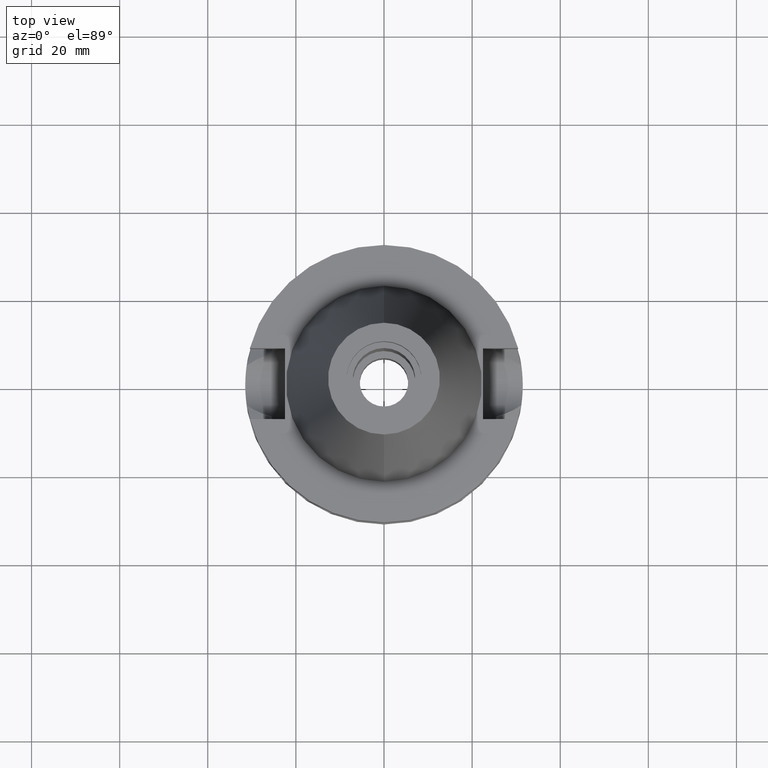
[diagram: clean part render]
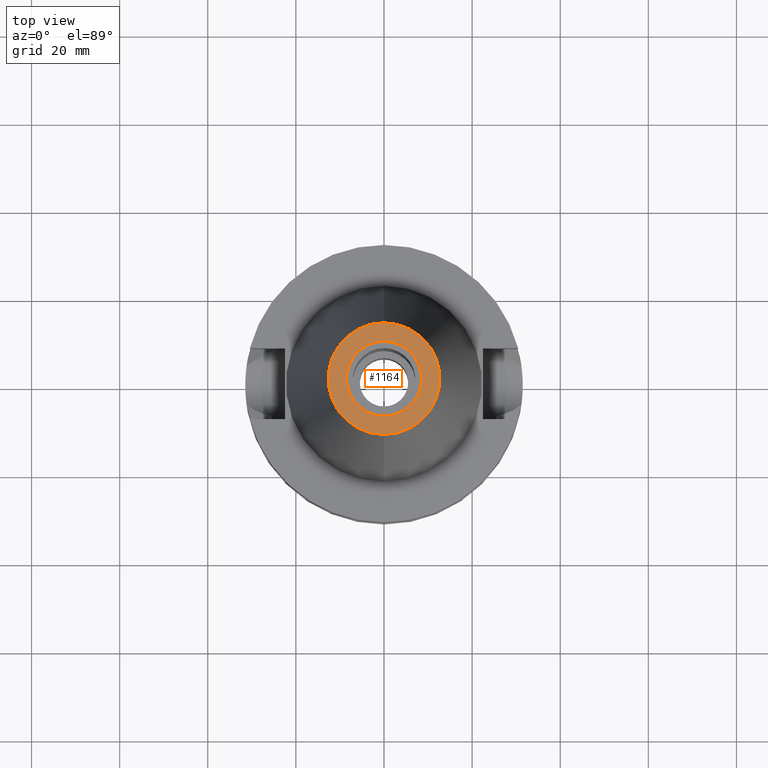
[diagram: same view with one face highlighted and labeled with its STEP entity id]
A machine part, top view. The second image highlights one B-rep face of the part: STEP entity #1164.
In plain terms, the highlighted planar face has unit normal (0, 0, -1).
Its self-contained STEP definition (entity closure, byte-faithful):
#17=CARTESIAN_POINT('',(0.E0,1.625106302469E-14,6.54E1));
#18=DIRECTION('',(0.E0,0.E0,-1.E0));
#19=DIRECTION('',(0.E0,-1.E0,0.E0));
#20=AXIS2_PLACEMENT_3D('',#17,#18,#19);
#26=CARTESIAN_POINT('',(0.E0,1.625106302469E-14,6.54E1));
#27=DIRECTION('',(0.E0,0.E0,-1.E0));
#28=DIRECTION('',(0.E0,1.E0,0.E0));
#29=AXIS2_PLACEMENT_3D('',#26,#27,#28);
#34=CARTESIAN_POINT('',(0.E0,2.111352314070E-14,6.54E1));
#35=DIRECTION('',(0.E0,0.E0,1.E0));
#36=DIRECTION('',(0.E0,-1.E0,0.E0));
#37=AXIS2_PLACEMENT_3D('',#34,#35,#36);
#42=CARTESIAN_POINT('',(0.E0,2.111352314070E-14,6.54E1));
#43=DIRECTION('',(0.E0,0.E0,1.E0));
#44=DIRECTION('',(0.E0,1.E0,0.E0));
#45=AXIS2_PLACEMENT_3D('',#42,#43,#44);
#994=CARTESIAN_POINT('',(0.E0,-1.268766899430E1,6.54E1));
#995=CARTESIAN_POINT('',(0.E0,1.268766899430E1,6.54E1));
#996=VERTEX_POINT('',#994);
#997=VERTEX_POINT('',#995);
#998=CARTESIAN_POINT('',(0.E0,-8.5E0,6.54E1));
#999=CARTESIAN_POINT('',(0.E0,8.5E0,6.54E1));
#1000=VERTEX_POINT('',#998);
#1001=VERTEX_POINT('',#999);
#1147=CARTESIAN_POINT('',(0.E0,2.025565805790E-14,6.54E1));
#1148=DIRECTION('',(0.E0,0.E0,-1.E0));
#1149=DIRECTION('',(0.E0,-1.E0,0.E0));
#1150=AXIS2_PLACEMENT_3D('',#1147,#1148,#1149);
#1151=PLANE('',#1150);
#1153=ORIENTED_EDGE('',*,*,#1152,.T.);
#1155=ORIENTED_EDGE('',*,*,#1154,.T.);
#1156=EDGE_LOOP('',(#1153,#1155));
#1157=FACE_OUTER_BOUND('',#1156,.F.);
#1159=ORIENTED_EDGE('',*,*,#1158,.T.);
#1161=ORIENTED_EDGE('',*,*,#1160,.T.);
#1162=EDGE_LOOP('',(#1159,#1161));
#1163=FACE_BOUND('',#1162,.F.);
#21=CIRCLE('',#20,1.268766899430E1);
#30=CIRCLE('',#29,1.268766899430E1);
#38=CIRCLE('',#37,8.5E0);
#46=CIRCLE('',#45,8.5E0);
#1152=EDGE_CURVE('',#996,#997,#21,.T.);
#1154=EDGE_CURVE('',#997,#996,#30,.T.);
#1158=EDGE_CURVE('',#1000,#1001,#38,.T.);
#1160=EDGE_CURVE('',#1001,#1000,#46,.T.);
#1164=ADVANCED_FACE('',(#1157,#1163),#1151,.F.);